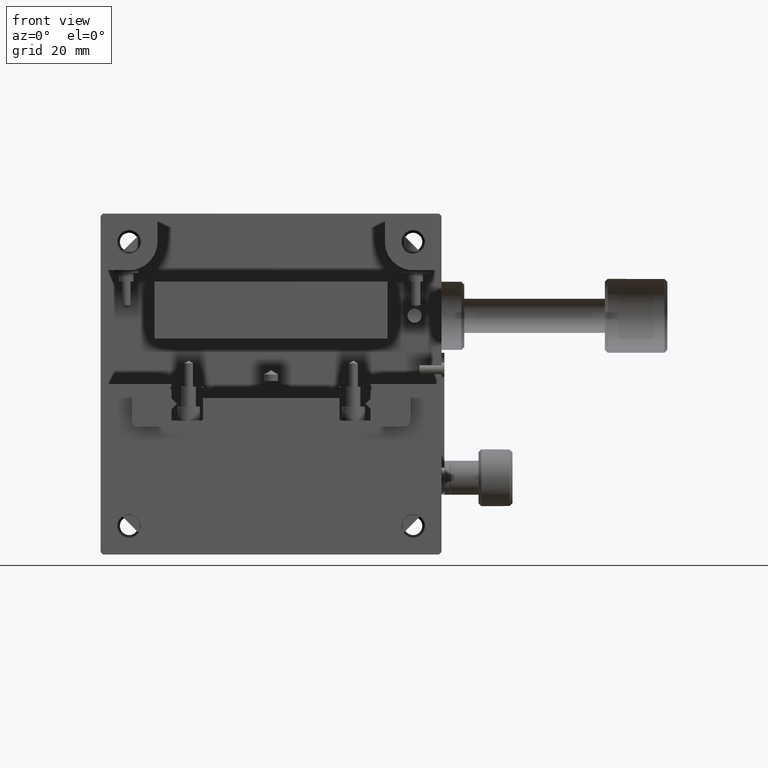
[diagram: clean part render]
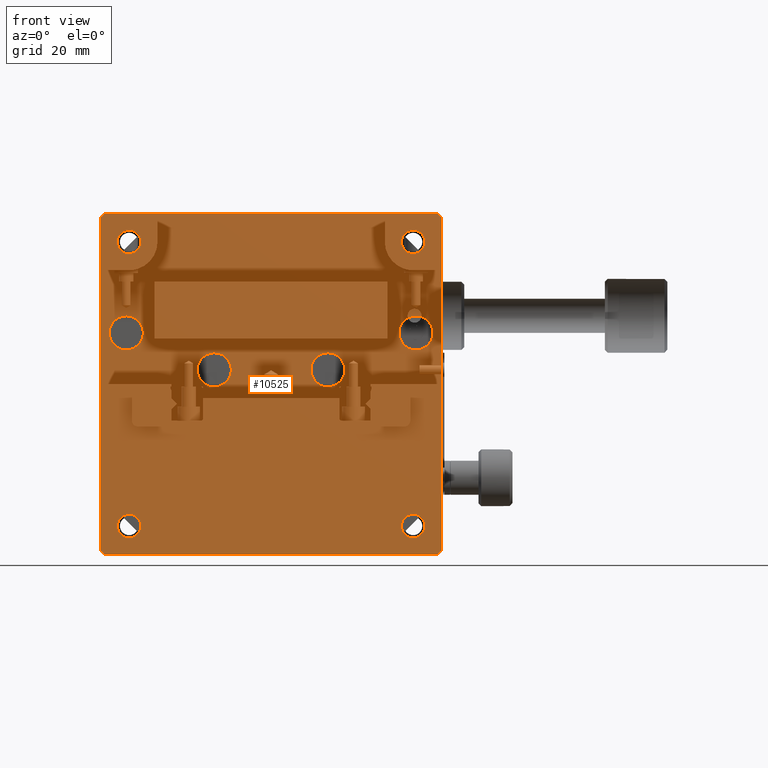
[diagram: same view with one face highlighted and labeled with its STEP entity id]
A machine part, front view. The second image highlights one B-rep face of the part: STEP entity #10525.
In plain terms, the highlighted planar face has unit normal (0, 1, 0).
Its self-contained STEP definition (entity closure, byte-faithful):
#15 = EDGE_LOOP ( 'NONE', ( #7554 ) ) ;
#135 = CARTESIAN_POINT ( 'NONE',  ( 7.453889935837842984E-16, 0.000000000000000000, -59.29000000000000625 ) ) ;
#174 = FACE_BOUND ( 'NONE', #5994, .T. ) ;
#252 = ORIENTED_EDGE ( 'NONE', *, *, #8047, .T. ) ;
#509 = VERTEX_POINT ( 'NONE', #6603 ) ;
#517 = DIRECTION ( 'NONE',  ( 0.000000000000000000, 0.000000000000000000, -1.000000000000000000 ) ) ;
#1001 = EDGE_LOOP ( 'NONE', ( #5696 ) ) ;
#1013 = EDGE_LOOP ( 'NONE', ( #7173 ) ) ;
#1109 = DIRECTION ( 'NONE',  ( 0.000000000000000000, 1.000000000000000000, 0.000000000000000000 ) ) ;
#1366 = DIRECTION ( 'NONE',  ( -0.7071067811865450192, 0.000000000000000000, 0.7071067811865500152 ) ) ;
#1368 = CIRCLE ( 'NONE', #2684, 2.066999999999999282 ) ;
#1393 = ORIENTED_EDGE ( 'NONE', *, *, #8290, .F. ) ;
#1439 = LINE ( 'NONE', #5148, #4526 ) ;
#1542 = DIRECTION ( 'NONE',  ( 0.000000000000000000, 0.000000000000000000, -1.000000000000000000 ) ) ;
#1555 = LINE ( 'NONE', #8608, #10969 ) ;
#1661 = DIRECTION ( 'NONE',  ( 0.000000000000000000, 0.000000000000000000, -1.000000000000000000 ) ) ;
#1830 = EDGE_CURVE ( 'NONE', #11229, #11229, #10170, .T. ) ;
#1857 = FACE_BOUND ( 'NONE', #5171, .T. ) ;
#1923 = PLANE ( 'NONE',  #11132 ) ;
#1938 = VECTOR ( 'NONE', #2846, 1000.000000000000000 ) ;
#1939 = CARTESIAN_POINT ( 'NONE',  ( 0.7100000000000080691, 0.000000000000000000, -60.00000000000000000 ) ) ;
#1959 = VERTEX_POINT ( 'NONE', #3770 ) ;
#1975 = EDGE_LOOP ( 'NONE', ( #10469, #8404, #1393, #2940, #3923, #6128, #11118, #252 ) ) ;
#2079 = VECTOR ( 'NONE', #8704, 1000.000000000000000 ) ;
#2115 = EDGE_CURVE ( 'NONE', #9509, #9509, #2275, .T. ) ;
#2275 = CIRCLE ( 'NONE', #3959, 2.067000000000000171 ) ;
#2684 = AXIS2_PLACEMENT_3D ( 'NONE', #6445, #10558, #517 ) ;
#2766 = EDGE_CURVE ( 'NONE', #8677, #8677, #4173, .T. ) ;
#2784 = AXIS2_PLACEMENT_3D ( 'NONE', #10342, #9467, #3100 ) ;
#2846 = DIRECTION ( 'NONE',  ( 0.000000000000000000, -0.000000000000000000, 1.000000000000000000 ) ) ;
#2908 = ORIENTED_EDGE ( 'NONE', *, *, #9733, .T. ) ;
#2940 = ORIENTED_EDGE ( 'NONE', *, *, #5353, .T. ) ;
#2982 = LINE ( 'NONE', #6331, #5587 ) ;
#3021 = DIRECTION ( 'NONE',  ( 0.000000000000000000, 0.000000000000000000, -1.000000000000000000 ) ) ;
#3072 = CARTESIAN_POINT ( 'NONE',  ( 59.28999999999999915, 0.000000000000000000, 0.000000000000000000 ) ) ;
#3100 = DIRECTION ( 'NONE',  ( 0.000000000000000000, 0.000000000000000000, -1.000000000000000000 ) ) ;
#3156 = DIRECTION ( 'NONE',  ( 0.000000000000000000, -1.000000000000000000, 0.000000000000000000 ) ) ;
#3286 = VERTEX_POINT ( 'NONE', #7588 ) ;
#3320 = DIRECTION ( 'NONE',  ( -0.7071067811865470176, 0.000000000000000000, -0.7071067811865480168 ) ) ;
#3466 = CARTESIAN_POINT ( 'NONE',  ( 5.000000000000000000, 0.000000000000000000, -5.000000000000000000 ) ) ;
#3716 = ORIENTED_EDGE ( 'NONE', *, *, #8735, .T. ) ;
#3770 = CARTESIAN_POINT ( 'NONE',  ( 40.00000000000000000, 0.000000000000000000, -30.50000000000000000 ) ) ;
#3853 = EDGE_CURVE ( 'NONE', #11259, #7483, #9087, .T. ) ;
#3923 = ORIENTED_EDGE ( 'NONE', *, *, #7501, .F. ) ;
#3959 = AXIS2_PLACEMENT_3D ( 'NONE', #3466, #7050, #10653 ) ;
#3961 = DIRECTION ( 'NONE',  ( 0.7071067811865500152, 0.000000000000000000, -0.7071067811865450192 ) ) ;
#4124 = VECTOR ( 'NONE', #1366, 1000.000000000000000 ) ;
#4173 = CIRCLE ( 'NONE', #9059, 2.067000000000000171 ) ;
#4182 = AXIS2_PLACEMENT_3D ( 'NONE', #9781, #11387, #1661 ) ;
#4195 = VERTEX_POINT ( 'NONE', #10551 ) ;
#4305 = VERTEX_POINT ( 'NONE', #9771 ) ;
#4371 = VERTEX_POINT ( 'NONE', #9666 ) ;
#4526 = VECTOR ( 'NONE', #3320, 1000.000000000000000 ) ;
#4535 = AXIS2_PLACEMENT_3D ( 'NONE', #10491, #6769, #1542 ) ;
#4576 = FACE_BOUND ( 'NONE', #4665, .T. ) ;
#4665 = EDGE_LOOP ( 'NONE', ( #8458 ) ) ;
#4683 = FACE_BOUND ( 'NONE', #10142, .T. ) ;
#4779 = DIRECTION ( 'NONE',  ( 0.000000000000000000, 0.000000000000000000, -1.000000000000000000 ) ) ;
#4933 = CARTESIAN_POINT ( 'NONE',  ( 20.00000000000000000, 0.000000000000000000, -27.50000000000000000 ) ) ;
#5145 = DIRECTION ( 'NONE',  ( 0.7071067811865474617, 0.000000000000000000, 0.7071067811865474617 ) ) ;
#5148 = CARTESIAN_POINT ( 'NONE',  ( 0.000000000000000000, 0.000000000000000000, -0.7100000000000009637 ) ) ;
#5160 = CARTESIAN_POINT ( 'NONE',  ( 59.28999999999999915, -1.951563910473907981E-15, -60.00000000000000000 ) ) ;
#5171 = EDGE_LOOP ( 'NONE', ( #3716 ) ) ;
#5309 = CIRCLE ( 'NONE', #4182, 2.999999999999999112 ) ;
#5324 = CARTESIAN_POINT ( 'NONE',  ( 55.00000000000000000, 0.000000000000000000, -7.067000000000009940 ) ) ;
#5342 = VERTEX_POINT ( 'NONE', #1939 ) ;
#5353 = EDGE_CURVE ( 'NONE', #3286, #5436, #2982, .T. ) ;
#5358 = VECTOR ( 'NONE', #3961, 1000.000000000000000 ) ;
#5436 = VERTEX_POINT ( 'NONE', #8222 ) ;
#5514 = EDGE_CURVE ( 'NONE', #509, #509, #11429, .T. ) ;
#5572 = EDGE_CURVE ( 'NONE', #9440, #9440, #7850, .T. ) ;
#5587 = VECTOR ( 'NONE', #5689, 1000.000000000000000 ) ;
#5675 = DIRECTION ( 'NONE',  ( 0.000000000000000000, 0.000000000000000000, -1.000000000000000000 ) ) ;
#5689 = DIRECTION ( 'NONE',  ( 1.000000000000000000, 0.000000000000000000, -0.000000000000000000 ) ) ;
#5696 = ORIENTED_EDGE ( 'NONE', *, *, #2115, .T. ) ;
#5804 = EDGE_CURVE ( 'NONE', #11259, #5342, #6848, .T. ) ;
#5955 = CARTESIAN_POINT ( 'NONE',  ( 0.7100000000000009637, 0.000000000000000000, -60.00000000000000000 ) ) ;
#5994 = EDGE_LOOP ( 'NONE', ( #2908 ) ) ;
#6044 = LINE ( 'NONE', #11422, #2079 ) ;
#6128 = ORIENTED_EDGE ( 'NONE', *, *, #10424, .T. ) ;
#6209 = AXIS2_PLACEMENT_3D ( 'NONE', #8465, #9480, #4779 ) ;
#6331 = CARTESIAN_POINT ( 'NONE',  ( 0.000000000000000000, 0.000000000000000000, 1.084202172485499997E-16 ) ) ;
#6376 = FACE_BOUND ( 'NONE', #15, .T. ) ;
#6445 = CARTESIAN_POINT ( 'NONE',  ( 5.000000000000000000, 0.000000000000000000, -55.00000000000000000 ) ) ;
#6603 = CARTESIAN_POINT ( 'NONE',  ( 4.500000000000000888, 0.000000000000000000, -24.00000000000000000 ) ) ;
#6654 = CARTESIAN_POINT ( 'NONE',  ( 0.000000000000000000, 0.000000000000000000, -0.7100000000000012967 ) ) ;
#6769 = DIRECTION ( 'NONE',  ( 0.000000000000000000, -1.000000000000000000, 0.000000000000000000 ) ) ;
#6848 = LINE ( 'NONE', #5955, #5358 ) ;
#6917 = CARTESIAN_POINT ( 'NONE',  ( 60.00000000000000000, 0.000000000000000000, 0.000000000000000000 ) ) ;
#7017 = EDGE_CURVE ( 'NONE', #4371, #4371, #1368, .T. ) ;
#7050 = DIRECTION ( 'NONE',  ( 0.000000000000000000, -1.000000000000000000, 0.000000000000000000 ) ) ;
#7097 = CARTESIAN_POINT ( 'NONE',  ( 60.00000000000000000, 0.000000000000000000, -0.7100000000000000755 ) ) ;
#7116 = EDGE_CURVE ( 'NONE', #10457, #4305, #1555, .T. ) ;
#7150 = FACE_OUTER_BOUND ( 'NONE', #1975, .T. ) ;
#7173 = ORIENTED_EDGE ( 'NONE', *, *, #5572, .T. ) ;
#7302 = CARTESIAN_POINT ( 'NONE',  ( 0.000000000000000000, 0.000000000000000000, 0.000000000000000000 ) ) ;
#7483 = VERTEX_POINT ( 'NONE', #6654 ) ;
#7501 = EDGE_CURVE ( 'NONE', #11462, #5436, #11262, .T. ) ;
#7554 = ORIENTED_EDGE ( 'NONE', *, *, #5514, .T. ) ;
#7588 = CARTESIAN_POINT ( 'NONE',  ( 0.7099999999999999645, 0.000000000000000000, -5.416677968589100837E-32 ) ) ;
#7707 = ORIENTED_EDGE ( 'NONE', *, *, #1830, .T. ) ;
#7850 = CIRCLE ( 'NONE', #10299, 2.999999999999999112 ) ;
#8047 = EDGE_CURVE ( 'NONE', #10457, #5342, #6044, .T. ) ;
#8157 = CARTESIAN_POINT ( 'NONE',  ( 0.000000000000000000, 0.000000000000000000, 0.000000000000000000 ) ) ;
#8222 = CARTESIAN_POINT ( 'NONE',  ( 59.28999999999999915, 0.000000000000000000, 0.000000000000000000 ) ) ;
#8227 = ORIENTED_EDGE ( 'NONE', *, *, #2766, .T. ) ;
#8263 = FACE_BOUND ( 'NONE', #1013, .T. ) ;
#8264 = CARTESIAN_POINT ( 'NONE',  ( 55.00000000000000000, 0.000000000000000000, -5.000000000000009770 ) ) ;
#8290 = EDGE_CURVE ( 'NONE', #3286, #7483, #1439, .T. ) ;
#8384 = CARTESIAN_POINT ( 'NONE',  ( 55.50000000000000000, 0.000000000000000000, -24.00000000000000000 ) ) ;
#8404 = ORIENTED_EDGE ( 'NONE', *, *, #3853, .T. ) ;
#8458 = ORIENTED_EDGE ( 'NONE', *, *, #7017, .T. ) ;
#8465 = CARTESIAN_POINT ( 'NONE',  ( 55.50000000000000000, 0.000000000000000000, -21.00000000000000000 ) ) ;
#8487 = CARTESIAN_POINT ( 'NONE',  ( 20.00000000000000000, 0.000000000000000000, -30.50000000000000000 ) ) ;
#8608 = CARTESIAN_POINT ( 'NONE',  ( 60.00000000000000000, -3.469446951953614189E-15, -59.28999999999999915 ) ) ;
#8677 = VERTEX_POINT ( 'NONE', #5324 ) ;
#8704 = DIRECTION ( 'NONE',  ( -1.000000000000000000, -0.000000000000000000, 0.000000000000000000 ) ) ;
#8735 = EDGE_CURVE ( 'NONE', #4195, #4195, #9605, .T. ) ;
#8923 = DIRECTION ( 'NONE',  ( -0.000000000000000000, 0.000000000000000000, -1.000000000000000000 ) ) ;
#8980 = FACE_BOUND ( 'NONE', #10730, .T. ) ;
#9037 = FACE_BOUND ( 'NONE', #1001, .T. ) ;
#9059 = AXIS2_PLACEMENT_3D ( 'NONE', #8264, #10934, #5675 ) ;
#9087 = LINE ( 'NONE', #7302, #1938 ) ;
#9157 = DIRECTION ( 'NONE',  ( 0.000000000000000000, -0.000000000000000000, 1.000000000000000000 ) ) ;
#9440 = VERTEX_POINT ( 'NONE', #8487 ) ;
#9467 = DIRECTION ( 'NONE',  ( 0.000000000000000000, -1.000000000000000000, 0.000000000000000000 ) ) ;
#9480 = DIRECTION ( 'NONE',  ( 0.000000000000000000, -1.000000000000000000, 0.000000000000000000 ) ) ;
#9509 = VERTEX_POINT ( 'NONE', #10221 ) ;
#9605 = CIRCLE ( 'NONE', #4535, 2.066999999999999282 ) ;
#9666 = CARTESIAN_POINT ( 'NONE',  ( 5.000000000000000000, 0.000000000000000000, -57.06700000000000017 ) ) ;
#9733 = EDGE_CURVE ( 'NONE', #1959, #1959, #5309, .T. ) ;
#9743 = LINE ( 'NONE', #6917, #10972 ) ;
#9771 = CARTESIAN_POINT ( 'NONE',  ( 60.00000000000000000, -1.951563910473907981E-15, -59.28999999999999204 ) ) ;
#9781 = CARTESIAN_POINT ( 'NONE',  ( 40.00000000000000000, 0.000000000000000000, -27.50000000000000000 ) ) ;
#10142 = EDGE_LOOP ( 'NONE', ( #7707 ) ) ;
#10170 = CIRCLE ( 'NONE', #6209, 2.999999999999999112 ) ;
#10221 = CARTESIAN_POINT ( 'NONE',  ( 5.000000000000000000, 0.000000000000000000, -7.067000000000000171 ) ) ;
#10299 = AXIS2_PLACEMENT_3D ( 'NONE', #4933, #3156, #3021 ) ;
#10342 = CARTESIAN_POINT ( 'NONE',  ( 4.500000000000000888, 0.000000000000000000, -21.00000000000000000 ) ) ;
#10424 = EDGE_CURVE ( 'NONE', #11462, #4305, #9743, .T. ) ;
#10457 = VERTEX_POINT ( 'NONE', #5160 ) ;
#10469 = ORIENTED_EDGE ( 'NONE', *, *, #5804, .F. ) ;
#10491 = CARTESIAN_POINT ( 'NONE',  ( 55.00000000000000000, 0.000000000000000000, -55.00000000000000000 ) ) ;
#10525 = ADVANCED_FACE ( 'NONE', ( #7150, #9037, #8980, #1857, #4576, #6376, #4683, #8263, #174 ), #1923, .T. ) ;
#10551 = CARTESIAN_POINT ( 'NONE',  ( 55.00000000000000000, 0.000000000000000000, -57.06700000000000017 ) ) ;
#10558 = DIRECTION ( 'NONE',  ( 0.000000000000000000, -1.000000000000000000, 0.000000000000000000 ) ) ;
#10653 = DIRECTION ( 'NONE',  ( 0.000000000000000000, 0.000000000000000000, -1.000000000000000000 ) ) ;
#10730 = EDGE_LOOP ( 'NONE', ( #8227 ) ) ;
#10934 = DIRECTION ( 'NONE',  ( 0.000000000000000000, -1.000000000000000000, 0.000000000000000000 ) ) ;
#10969 = VECTOR ( 'NONE', #5145, 1000.000000000000114 ) ;
#10972 = VECTOR ( 'NONE', #8923, 1000.000000000000000 ) ;
#11118 = ORIENTED_EDGE ( 'NONE', *, *, #7116, .F. ) ;
#11132 = AXIS2_PLACEMENT_3D ( 'NONE', #8157, #1109, #9157 ) ;
#11229 = VERTEX_POINT ( 'NONE', #8384 ) ;
#11259 = VERTEX_POINT ( 'NONE', #135 ) ;
#11262 = LINE ( 'NONE', #3072, #4124 ) ;
#11387 = DIRECTION ( 'NONE',  ( 0.000000000000000000, -1.000000000000000000, 0.000000000000000000 ) ) ;
#11422 = CARTESIAN_POINT ( 'NONE',  ( 0.000000000000000000, 0.000000000000000000, -60.00000000000000000 ) ) ;
#11429 = CIRCLE ( 'NONE', #2784, 2.999999999999999112 ) ;
#11462 = VERTEX_POINT ( 'NONE', #7097 ) ;